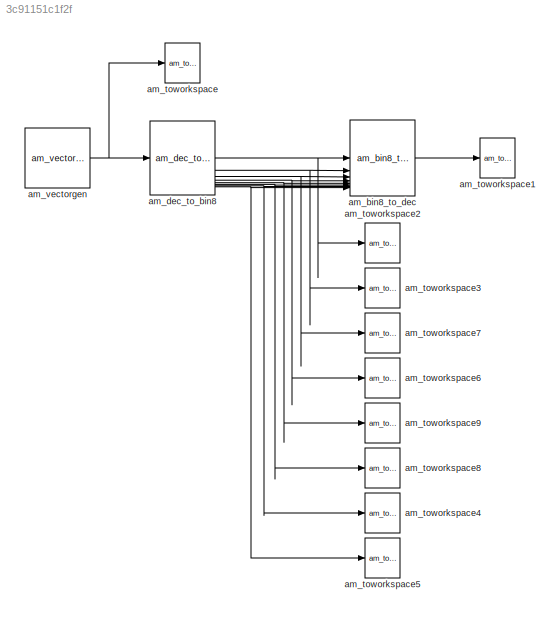
MODEL slx_3c91151c1f2f
KIND model
CONFIG AbsTol = auto
CONFIG EnableMultiTasking = off
CONFIG FixedStep = auto
CONFIG MaxStep = auto
CONFIG MinStep = auto
CONFIG RelTol = 1e-3
CONFIG SampleTimeConstraint = Unconstrained
CONFIG SolverName = VariableStepAuto
CONFIG StartTime = 0.0
CONFIG StopTime = 10.0
BLOCK [Reference] am_bin8_to_dec  REF=NSA_DEVS_DIGITALI3E_CONVERTER/am_bin8_to_dec
  SourceBlock = NSA_DEVS_DIGITALI3E_CONVERTER/am_bin8_to_dec
BLOCK [Reference] am_dec_to_bin8  REF=NSA_DEVS_DIGITALI3E_CONVERTER/am_dec_to_bin8
  SourceBlock = NSA_DEVS_DIGITALI3E_CONVERTER/am_dec_to_bin8
BLOCK [Reference] am_toworkspace  REF=NSA_DEVS_SINKS/am_toworkspace
  SourceBlock = NSA_DEVS_SINKS/am_toworkspace
  SourceProductName = Sinks
  SourceType = ToWorkspace
BLOCK [Reference] am_toworkspace1  REF=NSA_DEVS_SINKS/am_toworkspace
  SourceBlock = NSA_DEVS_SINKS/am_toworkspace
  SourceProductName = Sinks
  SourceType = ToWorkspace
BLOCK [Reference] am_toworkspace2  REF=NSA_DEVS_SINKS/am_toworkspace
  SourceBlock = NSA_DEVS_SINKS/am_toworkspace
  SourceProductName = Sinks
  SourceType = ToWorkspace
BLOCK [Reference] am_toworkspace3  REF=NSA_DEVS_SINKS/am_toworkspace
  SourceBlock = NSA_DEVS_SINKS/am_toworkspace
  SourceProductName = Sinks
  SourceType = ToWorkspace
BLOCK [Reference] am_toworkspace4  REF=NSA_DEVS_SINKS/am_toworkspace
  SourceBlock = NSA_DEVS_SINKS/am_toworkspace
  SourceProductName = Sinks
  SourceType = ToWorkspace
BLOCK [Reference] am_toworkspace5  REF=NSA_DEVS_SINKS/am_toworkspace
  SourceBlock = NSA_DEVS_SINKS/am_toworkspace
  SourceProductName = Sinks
  SourceType = ToWorkspace
BLOCK [Reference] am_toworkspace6  REF=NSA_DEVS_SINKS/am_toworkspace
  SourceBlock = NSA_DEVS_SINKS/am_toworkspace
  SourceProductName = Sinks
  SourceType = ToWorkspace
BLOCK [Reference] am_toworkspace7  REF=NSA_DEVS_SINKS/am_toworkspace
  SourceBlock = NSA_DEVS_SINKS/am_toworkspace
  SourceProductName = Sinks
  SourceType = ToWorkspace
BLOCK [Reference] am_toworkspace8  REF=NSA_DEVS_SINKS/am_toworkspace
  SourceBlock = NSA_DEVS_SINKS/am_toworkspace
  SourceProductName = Sinks
  SourceType = ToWorkspace
BLOCK [Reference] am_toworkspace9  REF=NSA_DEVS_SINKS/am_toworkspace
  SourceBlock = NSA_DEVS_SINKS/am_toworkspace
  SourceProductName = Sinks
  SourceType = ToWorkspace
BLOCK [Reference] am_vectorgen  REF=NSA_DEVS_SOURCES/am_vectorgen
  SourceBlock = NSA_DEVS_SOURCES/am_vectorgen
  SourceProductName = Sources
  SourceType = Vectorgen
LINE am_bin8_to_dec:1 -> am_toworkspace1:1
NET am_dec_to_bin8:1 -> am_bin8_to_dec:1, am_toworkspace2:1
NET am_dec_to_bin8:2 -> am_bin8_to_dec:2, am_toworkspace3:1
NET am_dec_to_bin8:3 -> am_bin8_to_dec:3, am_toworkspace7:1
NET am_dec_to_bin8:4 -> am_bin8_to_dec:4, am_toworkspace6:1
NET am_dec_to_bin8:5 -> am_bin8_to_dec:5, am_toworkspace9:1
NET am_dec_to_bin8:6 -> am_bin8_to_dec:6, am_toworkspace8:1
NET am_dec_to_bin8:7 -> am_bin8_to_dec:7, am_toworkspace4:1
NET am_dec_to_bin8:8 -> am_bin8_to_dec:8, am_toworkspace5:1
NET am_vectorgen:1 -> am_dec_to_bin8:1, am_toworkspace:1
note: NET lines group one-source signal fan-out (src -> all destinations, sorted); 1:1 wires keep LINE
